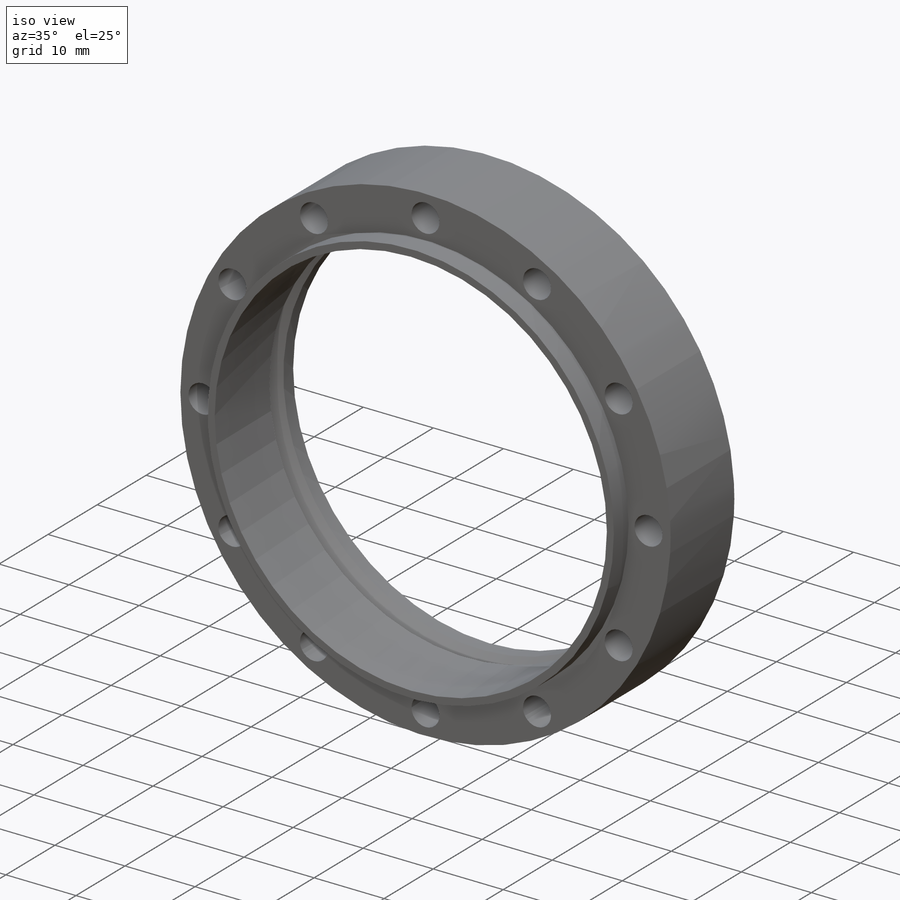
[diagram: iso view]
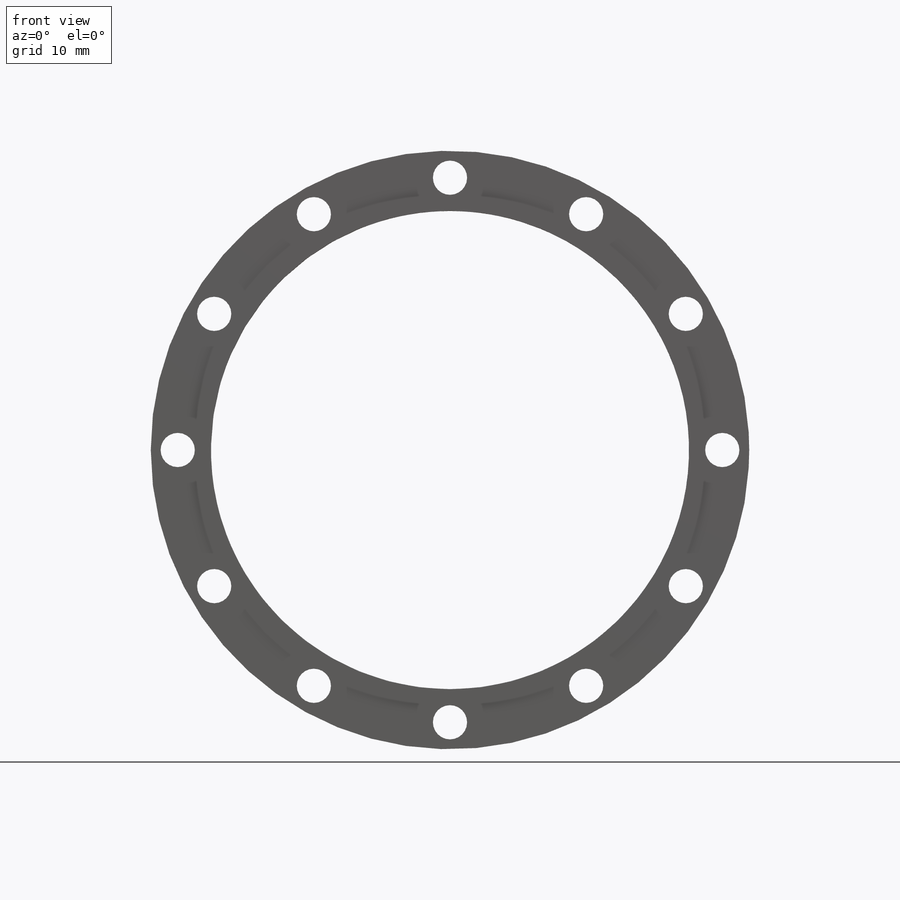
[diagram: front view]
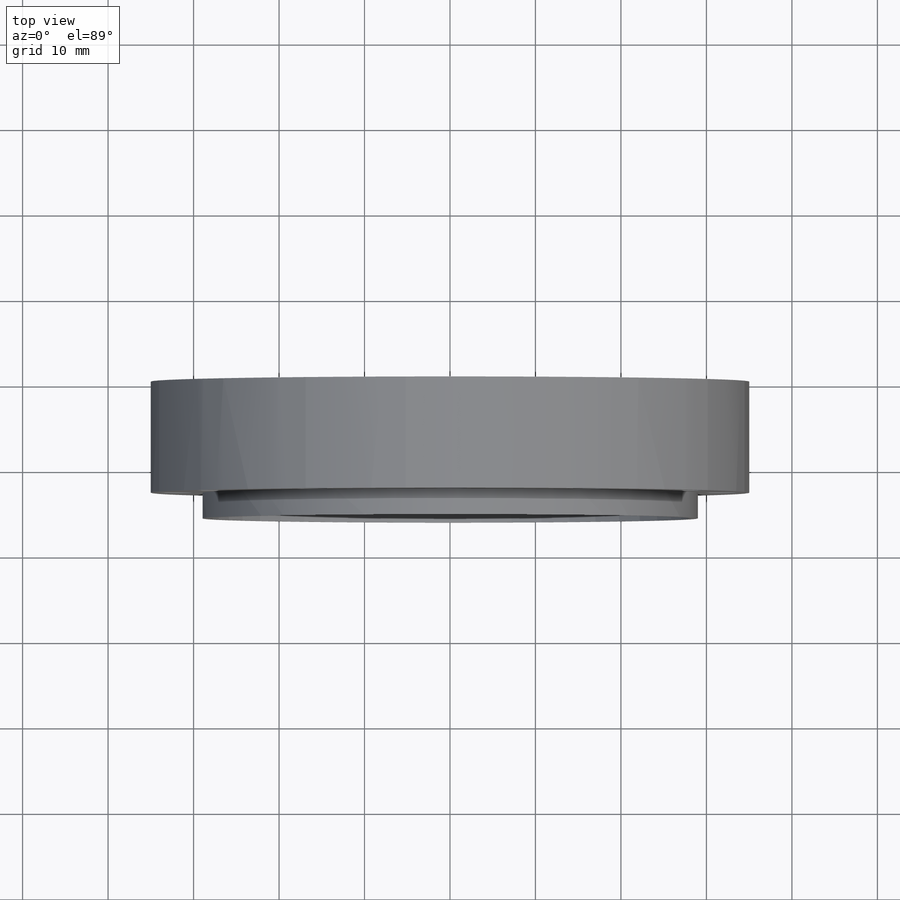
[diagram: top view]
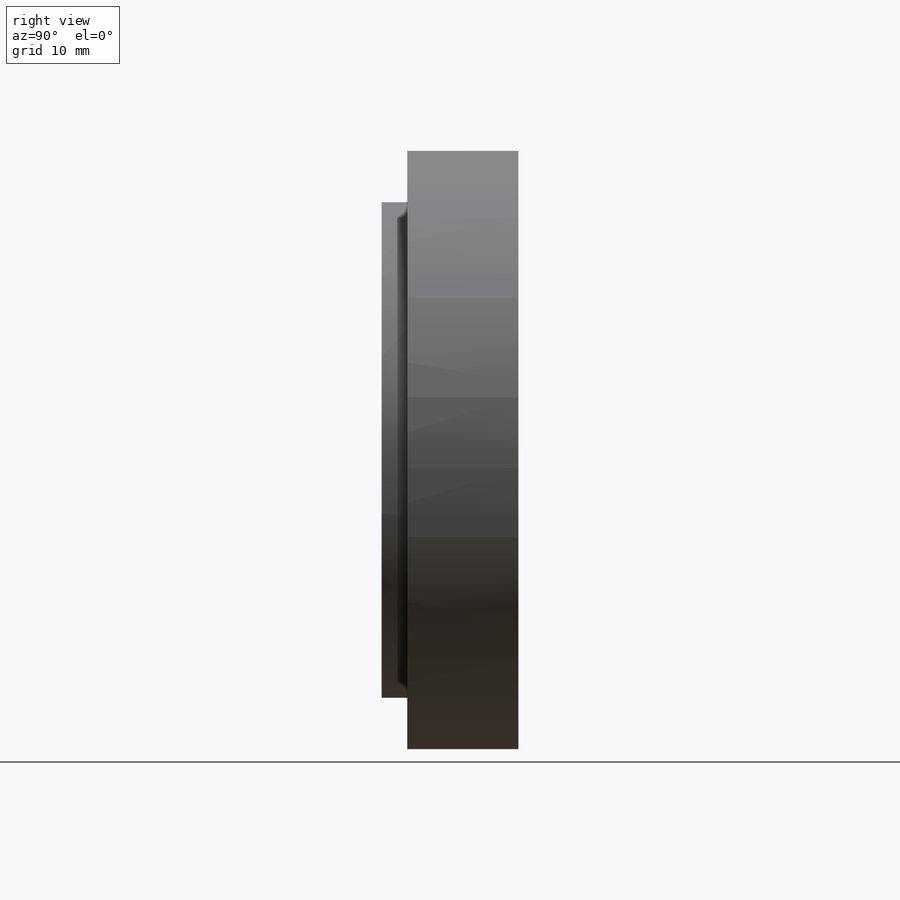
[diagram: right view]
SOLIDWORKS PART (.sldprt)
format: sldprt  version: not decoded by parser v0  size: 295,424 bytes
history: native  units: mm
features: sketch x5, plane x4, cut_extrude x3, material x1, extrude x1, pattern_circular x1, cut_revolve x1 (+9 scaffold rows collapsed)
feature tree (25):
  scaffold x9  (default folders/planes/origin — collapsed)
  material  "材质 <未指定>"
  plane  "前视基准面"
  plane  "上视基准面"
  plane  "右视基准面"
  sketch  "草图1"  dims[D1=~17.712521mm]
  extrude  "凸台-拉伸1"  Depth=16mm
  sketch  "草图2"  dims[D1=58.0mm]
  cut_extrude  "切除-拉伸1"  Depth=3mm
  sketch  "草图3"  dims[D1=~10.694963mm]
  cut_extrude  "切除-拉伸2"  [1 undecoded]
  sketch  "草图4"  dims[D1=~1.700634mm]
  cut_extrude  "切除-拉伸3"  [1 undecoded]
  pattern_circular  "阵列(圆周)1"  Count=12 Angle=360deg
  plane  "基准面1"  Offset=6mm
  sketch  "草图5"  dims[D1=2.03mm]
  cut_revolve  "切除-旋转3"  Angle=360deg
decode coverage: 9 of 11 modeling features carry decoded parameters
note: ~ marks probable driven/reference dimensions
note: 2 parameter values undecoded
note: suppression state not decoded; provenance and decode notes live in map.json
